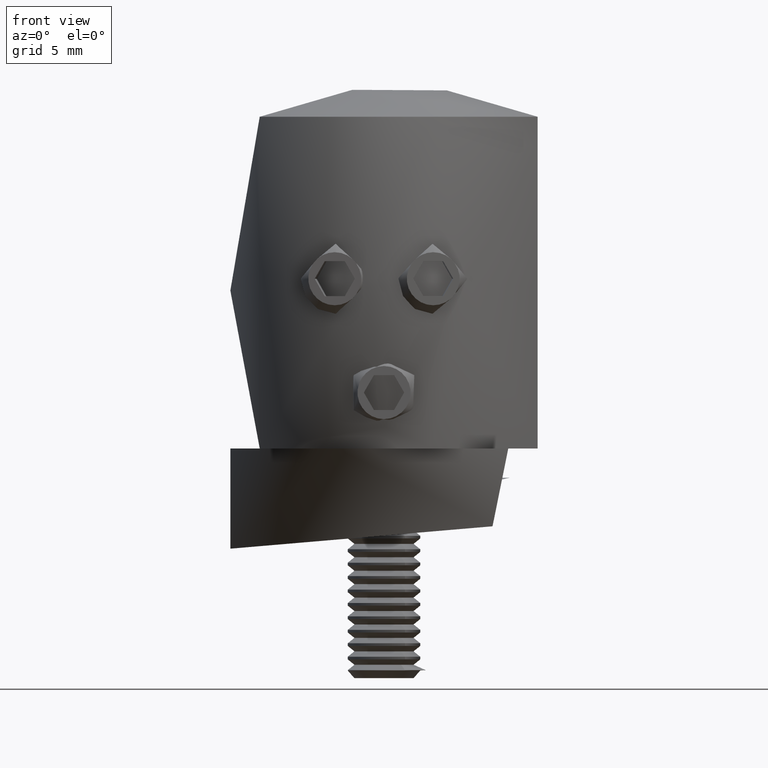
[diagram: clean part render]
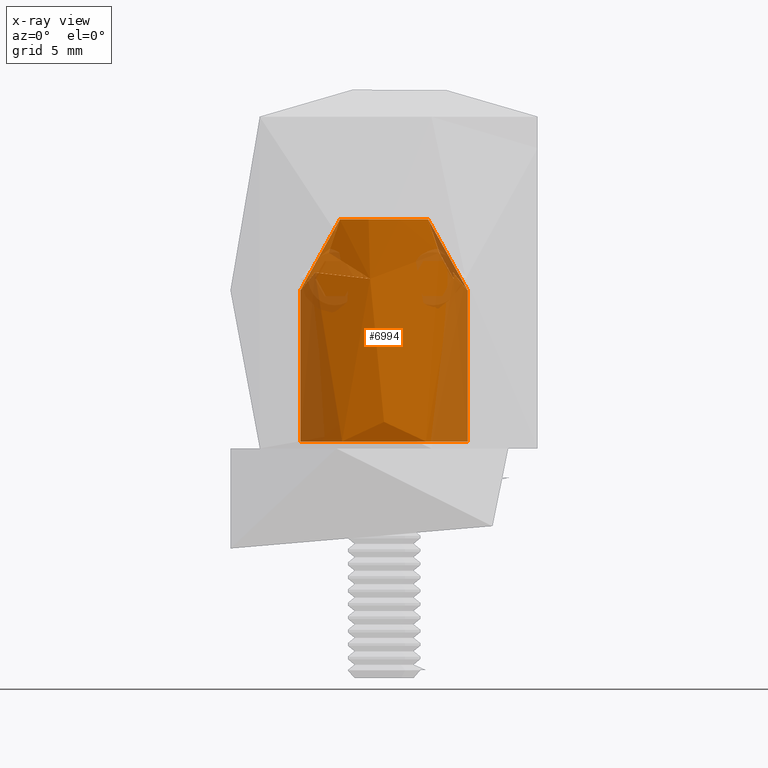
[diagram: x-ray — body ghosted, one internal face saturated and labeled with its STEP entity id]
A machine part, front view, then the same camera in x-ray: the body is ghosted and one INTERNAL B-rep face — a face not visible from any outside direction — is saturated and labeled: STEP entity #6994.
In plain terms, the highlighted cylindrical surface (bore or boss wall) has radius 6 mm, axis along (-0, -0, -1).
Its self-contained STEP definition (entity closure, byte-faithful):
#84 = CARTESIAN_POINT ( 'NONE',  ( 3.963627796410007500, -4.504403921888662200, 14.00827566210609000 ) ) ;
#374 = CARTESIAN_POINT ( 'NONE',  ( 5.178843461544558700, 3.058924640300817900, 12.29268326468126200 ) ) ;
#412 = EDGE_CURVE ( 'NONE', #7080, #25619, #26904, .T. ) ;
#650 = CARTESIAN_POINT ( 'NONE',  ( 5.664909505706115000, -1.991374640260977300, 11.69842010109297100 ) ) ;
#698 = CARTESIAN_POINT ( 'NONE',  ( 4.283612603047722600, -4.206199582006052900, 10.50553046394272600 ) ) ;
#710 = CARTESIAN_POINT ( 'NONE',  ( -4.944587663942321900, -3.398683985543438500, 12.59750776905322300 ) ) ;
#760 = VERTEX_POINT ( 'NONE', #84 ) ;
#806 = B_SPLINE_CURVE_WITH_KNOTS ( 'NONE', 3,
 ( #710, #25225, #18304, #27446, #9786, #27353, #14197, #14302, #7672, #9595, #1111, #5545, #24838, #18996, #16977, #27738, #14595, #12388, #9983, #12289, #21111, #8063, #6038, #1508, #27648, #10281, #21397, #25520 ),
 .UNSPECIFIED., .F., .F.,
 ( 4, 2, 2, 2, 2, 2, 2, 2, 2, 2, 2, 2, 2, 4 ),
 ( 0.004684118566430970800, 0.006241044027797427800, 0.007019506758480656800, 0.007797969489163884800, 0.009354894950530342700, 0.01013335768121357100, 0.01091182041189679900, 0.01169028314258002500, 0.01246874587326325500, 0.01402567133462970900, 0.01480413406531293600, 0.01558259679599616400, 0.01636105952667939200, 0.01713952225736261800 ),
 .UNSPECIFIED. ) ;
#1111 = CARTESIAN_POINT ( 'NONE',  ( -5.866878357186113400, 1.281289650151964400, 11.45713210838502000 ) ) ;
#1239 = CIRCLE ( 'NONE', #5977, 6.000000000000000900 ) ;
#1274 = CARTESIAN_POINT ( 'NONE',  ( -3.582402067820732200, -4.819579506651850300, 10.11712361285116300 ) ) ;
#1369 = CARTESIAN_POINT ( 'NONE',  ( -1.362082952691092000, -5.843717150840542600, 13.34669839885693700 ) ) ;
#1471 = CARTESIAN_POINT ( 'NONE',  ( -2.287385459283409100, -5.548168266091461300, 10.19763142698964300 ) ) ;
#1496 = CARTESIAN_POINT ( 'NONE',  ( -1.832704397464457200, -5.714346342055216100, 5.061775951773686400 ) ) ;
#1508 = CARTESIAN_POINT ( 'NONE',  ( -3.399871845494991000, 4.945276318470730500, 15.13008265535093600 ) ) ;
#1570 = CARTESIAN_POINT ( 'NONE',  ( -4.671822389001231800, -3.765960445681995500, 10.98122716688650700 ) ) ;
#1598 = CARTESIAN_POINT ( 'NONE',  ( 1.055318436482936700, -5.907600806349175400, 2.179273462287427700 ) ) ;
#1686 = CARTESIAN_POINT ( 'NONE',  ( -2.031781744484791200, -5.645590759985886100, 4.548445105721373100 ) ) ;
#1782 = CARTESIAN_POINT ( 'NONE',  ( 2.086195265504057000, -5.625710555255438700, 4.277106224398222500 ) ) ;
#1871 = CARTESIAN_POINT ( 'NONE',  ( 1.992054000542895300, -5.659936331073166300, 4.678887825467367800 ) ) ;
#1884 = CARTESIAN_POINT ( 'NONE',  ( 3.160696125855821500, 5.100000000000001400, 16.39999999999999900 ) ) ;
#2069 = CARTESIAN_POINT ( 'NONE',  ( 0.9956888940299061200, -5.916807100802974300, 11.91212198280521900 ) ) ;
#2637 = CARTESIAN_POINT ( 'NONE',  ( 1.692712975280191000, -5.757149353488415500, 13.72614047889225500 ) ) ;
#2824 = CARTESIAN_POINT ( 'NONE',  ( 2.636670307787595000, -5.391065980587816500, 14.21068298134421100 ) ) ;
#3311 = CARTESIAN_POINT ( 'NONE',  ( 3.582475698179066600, -4.819637230274396200, 10.11693280410713000 ) ) ;
#3383 = CARTESIAN_POINT ( 'NONE',  ( -3.273787596177557100, -5.029692095370272400, 10.06145353283641200 ) ) ;
#3486 = CARTESIAN_POINT ( 'NONE',  ( -1.051426410267749100, -5.907199050043304000, 11.65686942852143700 ) ) ;
#3587 = CARTESIAN_POINT ( 'NONE',  ( -1.599883992497362900, -5.783381617397855800, 13.63709420998438500 ) ) ;
#3680 = CARTESIAN_POINT ( 'NONE',  ( -4.284892769737043100, -4.204888590477193800, 10.50665291443979800 ) ) ;
#3707 = CARTESIAN_POINT ( 'NONE',  ( -1.991790499454957100, -5.660027428170497600, 4.679568982034624000 ) ) ;
#3800 = CARTESIAN_POINT ( 'NONE',  ( 1.581278183707604900, -5.788737489101017700, 5.388590976637336100 ) ) ;
#3892 = CARTESIAN_POINT ( 'NONE',  ( -1.833295944888411600, -5.714140928245533300, 2.939791683323970800 ) ) ;
#3904 = CARTESIAN_POINT ( 'NONE',  ( 3.313108273808068400, 5.002832400377725400, 15.37721622047414300 ) ) ;
#3992 = CARTESIAN_POINT ( 'NONE',  ( -1.991246174694209200, -5.660214997163486700, 3.319050225171499900 ) ) ;
#4080 = CARTESIAN_POINT ( 'NONE',  ( 0.2777402781516119000, -5.995120906657181300, 6.086177050655782800 ) ) ;
#4084 = CARTESIAN_POINT ( 'NONE',  ( 0.0000000000000000000, -6.000000000000000900, 1.900000000000006800 ) ) ;
#4125 = CARTESIAN_POINT ( 'NONE',  ( 3.160696125855821500, 5.100000000000001400, 16.39999999999999900 ) ) ;
#4157 = CARTESIAN_POINT ( 'NONE',  ( -3.596383116115096500, -4.809140083218909300, 14.17861305825851700 ) ) ;
#4253 = CARTESIAN_POINT ( 'NONE',  ( -3.186229028016214200, -5.090161533677232300, 14.25596224994003000 ) ) ;
#4300 = CARTESIAN_POINT ( 'NONE',  ( 3.596067074758821900, -4.809271572609593400, 14.17851190769137100 ) ) ;
#4580 = ORIENTED_EDGE ( 'NONE', *, *, #18705, .F. ) ;
#4601 = ORIENTED_EDGE ( 'NONE', *, *, #22645, .T. ) ;
#4716 = CARTESIAN_POINT ( 'NONE',  ( 5.917437792385388000, -1.025374287089488200, 11.39735028763261400 ) ) ;
#4860 = CARTESIAN_POINT ( 'NONE',  ( 1.357115522387696500, -5.846938441541011500, 13.35866094994271000 ) ) ;
#5000 = CARTESIAN_POINT ( 'NONE',  ( 3.945020083087439100, 4.523339642062945900, 14.03282817520512700 ) ) ;
#5119 = CARTESIAN_POINT ( 'NONE',  ( 3.160696125855821500, -5.100000000000001400, 16.39999999999999900 ) ) ;
#5215 = CARTESIAN_POINT ( 'NONE',  ( 3.160696125855821900, -5.100000000000002300, 16.17729008210736900 ) ) ;
#5396 = FACE_OUTER_BOUND ( 'NONE', #24860, .T. ) ;
#5437 = CARTESIAN_POINT ( 'NONE',  ( 2.502174247607535000, -5.454679040425515900, 10.12263065689578300 ) ) ;
#5444 = CARTESIAN_POINT ( 'NONE',  ( -3.560072459447669100, -4.833143233361817600, 14.72007646467286600 ) ) ;
#5545 = CARTESIAN_POINT ( 'NONE',  ( -5.740583058033427800, 1.762858751977864500, 11.60771712206802600 ) ) ;
#5613 = CARTESIAN_POINT ( 'NONE',  ( -4.982091296080214200, -3.343474391017399400, 12.35297356051982100 ) ) ;
#5703 = CARTESIAN_POINT ( 'NONE',  ( -3.160696125855821500, -5.100000000000001400, 16.39999999999999900 ) ) ;
#5709 = CARTESIAN_POINT ( 'NONE',  ( -4.968030209214217200, -3.364578513938583100, 12.47680731171085700 ) ) ;
#5808 = CARTESIAN_POINT ( 'NONE',  ( -1.688537285505763900, -5.758365342352514700, 13.72232640817623500 ) ) ;
#5830 = CARTESIAN_POINT ( 'NONE',  ( 0.1386258689238649400, -5.999981683544565800, 6.099947667266898000 ) ) ;
#5902 = CARTESIAN_POINT ( 'NONE',  ( -4.952469357456077900, -3.387306262229326000, 11.72646629277599600 ) ) ;
#5929 = CARTESIAN_POINT ( 'NONE',  ( -0.6799031944775879600, -5.962726470154970900, 5.991631115680869300 ) ) ;
#5977 = AXIS2_PLACEMENT_3D ( 'NONE', #23092, #27729, #14480 ) ;
#6002 = CARTESIAN_POINT ( 'NONE',  ( -2.506661409805778500, -5.452609643537304200, 10.12138250880624400 ) ) ;
#6029 = CARTESIAN_POINT ( 'NONE',  ( -0.1370357647622484900, -6.000018211104130500, 6.100052031729359400 ) ) ;
#6038 = CARTESIAN_POINT ( 'NONE',  ( -3.598102431109217600, 4.802972551146101700, 14.66797730926957200 ) ) ;
#6091 = DIRECTION ( 'NONE',  ( 0.0000000000000000000, 0.0000000000000000000, -1.000000000000000000 ) ) ;
#6124 = CARTESIAN_POINT ( 'NONE',  ( -5.421010862427522200E-017, -6.000000000000001800, 1.900000000000007200 ) ) ;
#6131 = CARTESIAN_POINT ( 'NONE',  ( 3.398906656994630000, 4.945916770634458000, 15.13283301013688500 ) ) ;
#6166 = CARTESIAN_POINT ( 'NONE',  ( -4.944587663942321900, -3.398683985543438500, 12.59750776905322300 ) ) ;
#6209 = CARTESIAN_POINT ( 'NONE',  ( 1.283385613909028100, -5.862276931221736700, 5.667804354879554500 ) ) ;
#6604 = CARTESIAN_POINT ( 'NONE',  ( 2.194638566625835900, -5.585347509414760700, 14.06142647140923800 ) ) ;
#6855 = CARTESIAN_POINT ( 'NONE',  ( 6.017146846273912600, -0.2525740522625695200, 11.27966869809984000 ) ) ;
#6878 = ORIENTED_EDGE ( 'NONE', *, *, #19557, .F. ) ;
#6946 = CARTESIAN_POINT ( 'NONE',  ( 5.868416528184992500, -1.274270267197173100, 11.45530783178270600 ) ) ;
#6994 = ADVANCED_FACE ( 'NONE', ( #16035, #5396, #21895 ), #19493, .F. ) ;
#7080 = VERTEX_POINT ( 'NONE', #4125 ) ;
#7087 = CARTESIAN_POINT ( 'NONE',  ( 0.9988944020458102600, -5.916266780273565100, 12.41494406465832200 ) ) ;
#7135 = CARTESIAN_POINT ( 'NONE',  ( 5.489157622313067400, -2.434321520078315700, 11.91173694614890400 ) ) ;
#7228 = CARTESIAN_POINT ( 'NONE',  ( 5.742565459749021000, -1.756422273439704600, 11.60534400090506100 ) ) ;
#7370 = CARTESIAN_POINT ( 'NONE',  ( 2.948197069023049000, -5.227236909516939500, 10.04914040493158500 ) ) ;
#7661 = CARTESIAN_POINT ( 'NONE',  ( 2.282078014693805100, -5.550362090377428900, 10.19980336431843400 ) ) ;
#7668 = CARTESIAN_POINT ( 'NONE',  ( -3.963627796410004800, -4.504403921888663100, 14.00827566210609200 ) ) ;
#7672 = CARTESIAN_POINT ( 'NONE',  ( -6.016742578279195900, 0.2608846127290774800, 11.28014068395215800 ) ) ;
#7757 = CARTESIAN_POINT ( 'NONE',  ( 4.126191260331181000, -4.362241004997599700, 10.38172132222632400 ) ) ;
#7828 = CARTESIAN_POINT ( 'NONE',  ( -1.225770891829618200, -5.873816657830052400, 11.18348596392051600 ) ) ;
#7921 = CARTESIAN_POINT ( 'NONE',  ( -0.9987055717154625900, -5.916298611956288600, 12.41624197979273500 ) ) ;
#8025 = CARTESIAN_POINT ( 'NONE',  ( -4.926841118183121500, -3.424840309259813400, 11.60604663986550700 ) ) ;
#8054 = CARTESIAN_POINT ( 'NONE',  ( -2.099994040831215400, -5.620500425096848200, 3.861512015611140700 ) ) ;
#8063 = CARTESIAN_POINT ( 'NONE',  ( -3.709996769329387200, 4.717995329412828700, 14.44961903877903900 ) ) ;
#8125 = CARTESIAN_POINT ( 'NONE',  ( -1.587331364435178100, -5.786828400762367200, 10.67581763058438700 ) ) ;
#8152 = CARTESIAN_POINT ( 'NONE',  ( -2.085970634324527700, -5.625794041661615500, 4.278667550940393300 ) ) ;
#8215 = CARTESIAN_POINT ( 'NONE',  ( -2.951085638064272500, -5.225611336216553900, 10.04899627896164700 ) ) ;
#8241 = CARTESIAN_POINT ( 'NONE',  ( -1.679082131009260700, -5.763747723864387500, 5.290733017625370800 ) ) ;
#8336 = CARTESIAN_POINT ( 'NONE',  ( 1.885684773470323500, -5.696257661656740200, 4.934537723020821600 ) ) ;
#8434 = CARTESIAN_POINT ( 'NONE',  ( 2.032077313730785000, -5.645484189008472600, 4.547412400692979700 ) ) ;
#8828 = CARTESIAN_POINT ( 'NONE',  ( 1.601873167470933900, -5.782829348632518900, 13.63908966217367300 ) ) ;
#9055 = EDGE_CURVE ( 'NONE', #20021, #20021, #18055, .T. ) ;
#9066 = CARTESIAN_POINT ( 'NONE',  ( 5.660036902840267300, 2.005150556095053500, 11.70428729152013500 ) ) ;
#9252 = CARTESIAN_POINT ( 'NONE',  ( 5.738045751502447400, 1.771025155336173100, 11.61075533529748700 ) ) ;
#9301 = CARTESIAN_POINT ( 'NONE',  ( 1.350100309867707600, -5.846490018497360300, 10.97099308778006800 ) ) ;
#9489 = CARTESIAN_POINT ( 'NONE',  ( 4.678452983618586600, -3.759800728649370900, 10.97535612577070400 ) ) ;
#9578 = B_SPLINE_CURVE_WITH_KNOTS ( 'NONE', 3,
 ( #27987, #5709, #5613, #19158, #23167, #5902, #8025, #12257, #16559, #27891, #1570, #20975, #14456, #3680, #14747, #25383, #1274, #3383, #21075, #8215, #16943, #10440, #6002, #1471, #14654, #21361, #18957, #25586, #8125, #14557, #18760, #7828, #23563, #16846, #3486, #16661, #18858, #7921, #23266, #10151, #25483, #1369, #16755, #3587, #5808, #12455, #23467, #10339, #27797, #19063, #25687, #12556, #4253, #4157, #15113, #17216 ),
 .UNSPECIFIED., .F., .F.,
 ( 4, 2, 2, 2, 2, 2, 2, 2, 2, 2, 2, 2, 2, 2, 2, 2, 2, 2, 2, 2, 2, 2, 2, 2, 2, 2, 2, 4 ),
 ( 0.006624583577701905300, 0.007001097644595522300, 0.007377611711489140200, 0.007754125778382758200, 0.008130639845276375200, 0.008507153912169992300, 0.008883667979063609300, 0.009636696112850846900, 0.01038972424663808100, 0.01076623831353169800, 0.01114275238042531500, 0.01151926644731893200, 0.01189578051421254900, 0.01227229458110616600, 0.01264880864799978300, 0.01302532271489340000, 0.01340183678178701700, 0.01377835084868063400, 0.01415486491557425300, 0.01490789304936148200, 0.01528440711625509400, 0.01566092118314870600, 0.01603743525004231900, 0.01641394931693593300, 0.01679046338382954300, 0.01716697745072315300, 0.01792000558451038000, 0.01867303371829760400 ),
 .UNSPECIFIED. ) ;
#9595 = CARTESIAN_POINT ( 'NONE',  ( -5.916151152053983800, 1.032699643971806600, 11.39887147789014500 ) ) ;
#9680 = CARTESIAN_POINT ( 'NONE',  ( 4.944587663943694100, -3.398683985541441000, 12.59750776905143800 ) ) ;
#9749 = CARTESIAN_POINT ( 'NONE',  ( 3.561587061274875200, -4.832075322084437000, 14.71638720343546900 ) ) ;
#9775 = CARTESIAN_POINT ( 'NONE',  ( 4.990376123501239800, -3.331096470449125000, 12.10256298574607200 ) ) ;
#9786 = CARTESIAN_POINT ( 'NONE',  ( -5.740629028012515200, -1.762626703503235000, 11.60766279271157600 ) ) ;
#9876 = CARTESIAN_POINT ( 'NONE',  ( 3.271097451955332400, -5.031468995202494000, 10.06107162082741100 ) ) ;
#9983 = CARTESIAN_POINT ( 'NONE',  ( -4.450954483077227400, 4.039104649793406700, 13.25281883874061800 ) ) ;
#10067 = ORIENTED_EDGE ( 'NONE', *, *, #11107, .F. ) ;
#10151 = CARTESIAN_POINT ( 'NONE',  ( -1.179461676836238000, -5.883106793458861000, 13.01984852006182400 ) ) ;
#10181 = CARTESIAN_POINT ( 'NONE',  ( -3.963627796410004800, -4.504403921888663100, 14.00827566210609200 ) ) ;
#10273 = CARTESIAN_POINT ( 'NONE',  ( 1.389511688007988100, -5.837728522015407200, 2.419587935187493200 ) ) ;
#10281 = CARTESIAN_POINT ( 'NONE',  ( -3.194982177376394000, 5.079088162471990100, 15.87374580042686900 ) ) ;
#10312 = DIRECTION ( 'NONE',  ( -0.0000000000000000000, -0.0000000000000000000, -1.000000000000000000 ) ) ;
#10339 = CARTESIAN_POINT ( 'NONE',  ( -2.191502181405272400, -5.586578646994479600, 14.05994591523701100 ) ) ;
#10366 = CARTESIAN_POINT ( 'NONE',  ( -0.5468734143387938800, -5.976552651432204900, 1.967803393346849300 ) ) ;
#10440 = CARTESIAN_POINT ( 'NONE',  ( -2.617088466805948400, -5.400587595789188500, 10.09358333075070700 ) ) ;
#10469 = CARTESIAN_POINT ( 'NONE',  ( 0.6812341139050355200, -5.962577447961941800, 2.008811109739972300 ) ) ;
#10566 = CARTESIAN_POINT ( 'NONE',  ( 2.100097390676808600, -5.620461810260685800, 4.136718875267625600 ) ) ;
#10575 = CARTESIAN_POINT ( 'NONE',  ( 3.707428650145803600, 4.720037900006674100, 14.45440338506117200 ) ) ;
#10650 = CARTESIAN_POINT ( 'NONE',  ( -0.6805891605157771100, -5.962656029525707200, 2.008574322222096000 ) ) ;
#11014 = VERTEX_POINT ( 'NONE', #16401 ) ;
#11028 = CARTESIAN_POINT ( 'NONE',  ( 3.963627796410007500, -4.504403921888662200, 14.00827566210609000 ) ) ;
#11107 = EDGE_CURVE ( 'NONE', #21536, #17068, #806, .T. ) ;
#11393 = AXIS2_PLACEMENT_3D ( 'NONE', #25360, #10312, #21240 ) ;
#11494 = CARTESIAN_POINT ( 'NONE',  ( 1.583088235637679400, -5.787981832293843000, 10.68028017261607200 ) ) ;
#11537 = CARTESIAN_POINT ( 'NONE',  ( 4.446699933118107000, 4.043518535216068500, 13.25902625283096500 ) ) ;
#11544 = DIRECTION ( 'NONE',  ( 0.0000000000000000000, 0.0000000000000000000, -1.000000000000000000 ) ) ;
#11676 = CARTESIAN_POINT ( 'NONE',  ( 4.860658666116163900, -3.518136408896220600, 11.38100650949569100 ) ) ;
#11736 = CARTESIAN_POINT ( 'NONE',  ( 0.0000000000000000000, 0.0000000000000000000, 16.39999999999999900 ) ) ;
#11878 = CARTESIAN_POINT ( 'NONE',  ( 3.165015859595747400, -5.098876962088781700, 10.05100034615316900 ) ) ;
#12257 = CARTESIAN_POINT ( 'NONE',  ( -4.860418934440280800, -3.518468747834088800, 11.38032000564165900 ) ) ;
#12289 = CARTESIAN_POINT ( 'NONE',  ( -4.071500004717051100, 4.410694759013715300, 13.82938710591207300 ) ) ;
#12388 = CARTESIAN_POINT ( 'NONE',  ( -4.704838616935878900, 3.746901427535465100, 12.90938224927646000 ) ) ;
#12455 = CARTESIAN_POINT ( 'NONE',  ( -1.878821813055621600, -5.699119070113919600, 13.87585293265111700 ) ) ;
#12484 = CARTESIAN_POINT ( 'NONE',  ( 1.056572057962529300, -5.907370391185574800, 5.819974034561118600 ) ) ;
#12505 = ORIENTED_EDGE ( 'NONE', *, *, #26699, .T. ) ;
#12556 = CARTESIAN_POINT ( 'NONE',  ( -2.965608677479696400, -5.221812271789287000, 14.26146414394764300 ) ) ;
#12675 = CARTESIAN_POINT ( 'NONE',  ( -1.282893921177701100, -5.862382304820062700, 5.668170089699676100 ) ) ;
#12763 = CARTESIAN_POINT ( 'NONE',  ( -0.5485102145950172500, -5.976435261253112900, 6.031854882297268200 ) ) ;
#12861 = CARTESIAN_POINT ( 'NONE',  ( -0.9335114993840605300, -5.928316084038139700, 5.886112174640410400 ) ) ;
#13020 = CARTESIAN_POINT ( 'NONE',  ( 0.0000000000000000000, 0.0000000000000000000, 16.39999999999999900 ) ) ;
#13630 = CARTESIAN_POINT ( 'NONE',  ( 1.040008053459179300, -5.909827525073979800, 11.65738222579900300 ) ) ;
#13676 = CARTESIAN_POINT ( 'NONE',  ( 6.016267994859013900, 0.2711918128703333400, 11.28069397961702500 ) ) ;
#13721 = CARTESIAN_POINT ( 'NONE',  ( 1.862569519180321300, -5.704444180930489800, 10.43583483340305700 ) ) ;
#14085 = CARTESIAN_POINT ( 'NONE',  ( 4.981936798883826800, -3.343705023080991300, 12.35529918368495600 ) ) ;
#14197 = CARTESIAN_POINT ( 'NONE',  ( -5.915921812180057400, -1.033984401102238300, 11.39914265507555100 ) ) ;
#14302 = CARTESIAN_POINT ( 'NONE',  ( -6.016651695743476600, -0.2625278848218902700, 11.28024699680533200 ) ) ;
#14392 = CARTESIAN_POINT ( 'NONE',  ( -3.160696125855822800, -5.100000000000000500, 16.17691197369491400 ) ) ;
#14456 = CARTESIAN_POINT ( 'NONE',  ( -4.491142068786903300, -3.979948673612515400, 10.72855360962682200 ) ) ;
#14480 = DIRECTION ( 'NONE',  ( 1.000000000000000000, 0.0000000000000000000, 0.0000000000000000000 ) ) ;
#14557 = CARTESIAN_POINT ( 'NONE',  ( -1.425314517131061300, -5.828849142639138700, 10.86528330058916200 ) ) ;
#14595 = CARTESIAN_POINT ( 'NONE',  ( -5.060460028990339900, 3.230392928849481000, 12.44677572447847800 ) ) ;
#14654 = CARTESIAN_POINT ( 'NONE',  ( -2.177294580764106400, -5.592130700219449600, 10.24684051174309100 ) ) ;
#14678 = CARTESIAN_POINT ( 'NONE',  ( -1.677594955765174600, -5.764126152619212500, 2.707790437232916700 ) ) ;
#14681 = CARTESIAN_POINT ( 'NONE',  ( -3.334541422147015300, -4.988905777990098000, 15.32126310528410200 ) ) ;
#14747 = CARTESIAN_POINT ( 'NONE',  ( -4.125758316876453300, -4.362545932366599800, 10.38163221995604400 ) ) ;
#14772 = CARTESIAN_POINT ( 'NONE',  ( 0.2773110508732141700, -5.995114773543329000, 1.913844450117064800 ) ) ;
#14871 = CARTESIAN_POINT ( 'NONE',  ( 2.031893931028322200, -5.645550960297868800, 3.451744546214746900 ) ) ;
#14928 = VERTEX_POINT ( 'NONE', #5703 ) ;
#15051 = CARTESIAN_POINT ( 'NONE',  ( 0.1399303184415932900, -6.000000000000000900, 1.900000000000006800 ) ) ;
#15113 = CARTESIAN_POINT ( 'NONE',  ( -3.789824974576860000, -4.657340849317566100, 14.10643098562282600 ) ) ;
#15246 = CARTESIAN_POINT ( 'NONE',  ( 6.000000000000000900, 0.0000000000000000000, 0.5000000000000073300 ) ) ;
#15258 = CARTESIAN_POINT ( 'NONE',  ( 1.046469327009110800, -5.908733390642509200, 12.66915061371736000 ) ) ;
#15363 = AXIS2_PLACEMENT_3D ( 'NONE', #11736, #11544, #16156 ) ;
#15821 = CARTESIAN_POINT ( 'NONE',  ( 3.291030815321886600, -5.018397556882134400, 14.23627767914201700 ) ) ;
#15959 = CARTESIAN_POINT ( 'NONE',  ( 5.063138256734535300, -3.226210227710315100, 12.44334997909046700 ) ) ;
#16035 = FACE_BOUND ( 'NONE', #18061, .T. ) ;
#16101 = CARTESIAN_POINT ( 'NONE',  ( 4.984299058426077300, -3.340296313382884900, 11.97417288685333100 ) ) ;
#16156 = DIRECTION ( 'NONE',  ( -1.000000000000000000, 0.0000000000000000000, 0.0000000000000000000 ) ) ;
#16401 = CARTESIAN_POINT ( 'NONE',  ( 3.160696125855821500, -5.100000000000001400, 16.39999999999999900 ) ) ;
#16486 = CARTESIAN_POINT ( 'NONE',  ( 3.774435877092753500, -4.669928769502911700, 10.18683171154375300 ) ) ;
#16559 = CARTESIAN_POINT ( 'NONE',  ( -4.819909396252788800, -3.574145276152942900, 11.27482809949493800 ) ) ;
#16661 = CARTESIAN_POINT ( 'NONE',  ( -1.007451421251168300, -5.914857542397793800, 11.90653046310271500 ) ) ;
#16755 = CARTESIAN_POINT ( 'NONE',  ( -1.436481205642208000, -5.826118216080193900, 13.44930239523347000 ) ) ;
#16846 = CARTESIAN_POINT ( 'NONE',  ( -1.084248152729514700, -5.901386170973695200, 11.53543332901641700 ) ) ;
#16874 = CARTESIAN_POINT ( 'NONE',  ( 2.086293483836122700, -5.625674900985020000, 3.723311567177205000 ) ) ;
#16943 = CARTESIAN_POINT ( 'NONE',  ( -2.838850796171040500, -5.287383528737048100, 10.05732129405920500 ) ) ;
#16970 = CARTESIAN_POINT ( 'NONE',  ( 0.5472454995192380700, -5.976522812652007100, 1.967890563847576500 ) ) ;
#16977 = CARTESIAN_POINT ( 'NONE',  ( -5.388552786171692900, 2.648371366797876100, 12.03504612515752500 ) ) ;
#17065 = CARTESIAN_POINT ( 'NONE',  ( -2.086440083120673500, -5.625620362231071400, 3.724349182297993300 ) ) ;
#17068 = VERTEX_POINT ( 'NONE', #28542 ) ;
#17150 = CARTESIAN_POINT ( 'NONE',  ( 1.669065092636238500, -5.763722404570113900, 5.281706429908801700 ) ) ;
#17216 = CARTESIAN_POINT ( 'NONE',  ( -3.963627796410004800, -4.504403921888663100, 14.00827566210609200 ) ) ;
#17311 = B_SPLINE_CURVE_WITH_KNOTS ( 'NONE', 3,
 ( #25090, #27412, #9749, #23070, #18270, #27114, #5215, #5119 ),
 .UNSPECIFIED., .F., .F.,
 ( 4, 2, 2, 4 ),
 ( 0.01451228433627344900, 0.01582590329681803400, 0.01648271277709032600, 0.01713952225736261800 ),
 .UNSPECIFIED. ) ;
#17573 = EDGE_LOOP ( 'NONE', ( #10067, #12505, #4580, #24641, #25326, #4601, #21364, #6878 ) ) ;
#17968 = ORIENTED_EDGE ( 'NONE', *, *, #9055, .T. ) ;
#18011 = CARTESIAN_POINT ( 'NONE',  ( 2.525781370937647500, -5.443799967251033300, 14.18396867793105500 ) ) ;
#18055 = B_SPLINE_CURVE_WITH_KNOTS ( 'NONE', 3,
 ( #6124, #15051, #14772, #16970, #10469, #28011, #1598, #27920, #10273, #23587, #28106, #21566, #14871, #16874, #19091, #10566, #1782, #8434, #1871, #8336, #23680, #17150, #3800, #25805, #6209, #12484, #21196, #19184, #25906, #4080, #5830, #6029, #27821, #12763, #5929, #12861, #21391, #12675, #28189, #8241, #1496, #3707, #1686, #8152, #23494, #8054, #17065, #23390, #3992, #3892, #14678, #25612, #19370, #23766, #21293, #10650, #10366, #25717, #25992, #19273 ),
 .UNSPECIFIED., .T., .F.,
 ( 4, 2, 2, 2, 2, 2, 2, 2, 2, 2, 2, 2, 2, 2, 2, 2, 2, 2, 2, 2, 2, 2, 2, 2, 2, 2, 2, 2, 2, 4 ),
 ( 0.0000000000000000000, 0.0004135997285890928200, 0.0008271994571781854200, 0.001240799185767278200, 0.001654398914356370600, 0.002481598371534556400, 0.002895198100123648800, 0.003308797828712741300, 0.003722397557301833300, 0.004135997285890926100, 0.004549597014480017700, 0.004963196743069110200, 0.005376796471658201700, 0.005790396200247294200, 0.006203995928836386600, 0.006617595657425478200, 0.007031195386014570600, 0.007444795114603662200, 0.007858394843192756400, 0.008271994571781848800, 0.009099194028960033700, 0.009512793757549127900, 0.009926393486138223800, 0.01033999321472731600, 0.01075359294331641200, 0.01158079240049460000, 0.01199439212908369600, 0.01240799185767279400, 0.01282159158626188800, 0.01323519131485098400 ),
 .UNSPECIFIED. ) ;
#18061 = EDGE_LOOP ( 'NONE', ( #17968 ) ) ;
#18270 = CARTESIAN_POINT ( 'NONE',  ( 3.272111028506235800, -5.029508855700319400, 15.52798237189490900 ) ) ;
#18304 = CARTESIAN_POINT ( 'NONE',  ( -5.398968870020876700, -2.660425002353118600, 12.02123983592167500 ) ) ;
#18494 = CARTESIAN_POINT ( 'NONE',  ( 4.558887936057995000, -3.906148056989400700, 10.80118767141158100 ) ) ;
#18688 = CARTESIAN_POINT ( 'NONE',  ( 2.172022174953488700, -5.594172179424058200, 10.24942340402316400 ) ) ;
#18696 = CARTESIAN_POINT ( 'NONE',  ( -3.271010178705379800, -5.030221484441294200, 15.53212945655468900 ) ) ;
#18705 = EDGE_CURVE ( 'NONE', #14928, #28451, #26513, .T. ) ;
#18760 = CARTESIAN_POINT ( 'NONE',  ( -1.352905182661310500, -5.845843307495226100, 10.96681732394318600 ) ) ;
#18805 = CIRCLE ( 'NONE', #15363, 6.000000000000000900 ) ;
#18858 = CARTESIAN_POINT ( 'NONE',  ( -0.9965698675233154400, -5.916658602652972800, 12.03470312213275600 ) ) ;
#18957 = CARTESIAN_POINT ( 'NONE',  ( -1.867012346143822600, -5.702990515895826300, 10.43263287930129500 ) ) ;
#18996 = CARTESIAN_POINT ( 'NONE',  ( -5.486735247265764700, 2.439748965561637600, 11.91469818101156300 ) ) ;
#19063 = CARTESIAN_POINT ( 'NONE',  ( -2.520095485918937500, -5.446433360173980300, 14.18241255914239400 ) ) ;
#19091 = CARTESIAN_POINT ( 'NONE',  ( 2.099901555218821200, -5.620534980703876500, 3.860305477660864500 ) ) ;
#19158 = CARTESIAN_POINT ( 'NONE',  ( -4.990317799970840800, -3.331183414518268400, 12.10198164588602200 ) ) ;
#19184 = CARTESIAN_POINT ( 'NONE',  ( 0.6810570200218701900, -5.962585327761368100, 5.991205495255797200 ) ) ;
#19273 = CARTESIAN_POINT ( 'NONE',  ( -5.421010862427522200E-017, -6.000000000000001800, 1.900000000000007200 ) ) ;
#19305 = VERTEX_POINT ( 'NONE', #15246 ) ;
#19370 = CARTESIAN_POINT ( 'NONE',  ( -1.281623710314719200, -5.862660541099056200, 2.330856865501477400 ) ) ;
#19493 = CYLINDRICAL_SURFACE ( 'NONE', #11393, 6.000000000000000900 ) ;
#19557 = EDGE_CURVE ( 'NONE', #17068, #7080, #27059, .T. ) ;
#19764 = CARTESIAN_POINT ( 'NONE',  ( 1.984652233648514200, -5.663364790521720600, 13.94652383108593700 ) ) ;
#20021 = VERTEX_POINT ( 'NONE', #4084 ) ;
#20229 = CARTESIAN_POINT ( 'NONE',  ( 1.169109844604505800, -5.885159445851431100, 11.30377530979094300 ) ) ;
#20371 = CARTESIAN_POINT ( 'NONE',  ( 5.914425086329727900, 1.042512491304960400, 11.40091233444566000 ) ) ;
#20511 = CARTESIAN_POINT ( 'NONE',  ( 1.962589016888208500, -5.671039327347463300, 10.36743759366884500 ) ) ;
#20803 = CARTESIAN_POINT ( 'NONE',  ( 4.819364607333074700, -3.574874926673077300, 11.27355772583063700 ) ) ;
#20810 = CARTESIAN_POINT ( 'NONE',  ( -3.755997526563764000, -4.687107143715539200, 14.35236594705229200 ) ) ;
#20906 = CARTESIAN_POINT ( 'NONE',  ( 2.613199006766267800, -5.402490001501360200, 10.09440669771622700 ) ) ;
#20975 = CARTESIAN_POINT ( 'NONE',  ( -4.554741834283534600, -3.906751762761741600, 10.80833133758690500 ) ) ;
#21075 = CARTESIAN_POINT ( 'NONE',  ( -3.168161060705136000, -5.096928072262337600, 10.05120099255709900 ) ) ;
#21077 = EDGE_CURVE ( 'NONE', #11014, #14928, #18805, .T. ) ;
#21111 = CARTESIAN_POINT ( 'NONE',  ( -3.946358823923650200, 4.522146391884684900, 14.03068410028995800 ) ) ;
#21196 = CARTESIAN_POINT ( 'NONE',  ( 0.9337857770029868200, -5.928263369488840700, 5.885943294885849200 ) ) ;
#21240 = DIRECTION ( 'NONE',  ( -1.000000000000000000, 0.0000000000000000000, 0.0000000000000000000 ) ) ;
#21293 = CARTESIAN_POINT ( 'NONE',  ( -0.9349122421464504100, -5.928103206872799900, 2.114551264284959300 ) ) ;
#21361 = CARTESIAN_POINT ( 'NONE',  ( -1.967132784024834500, -5.669473173918043500, 10.36450686264501700 ) ) ;
#21364 = ORIENTED_EDGE ( 'NONE', *, *, #412, .F. ) ;
#21391 = CARTESIAN_POINT ( 'NONE',  ( -1.056301083882023900, -5.907416619898390800, 5.820119853568162000 ) ) ;
#21397 = CARTESIAN_POINT ( 'NONE',  ( -3.160696125855821500, 5.100000000000001400, 16.13604009071083900 ) ) ;
#21450 = DIRECTION ( 'NONE',  ( -1.000000000000000000, 0.0000000000000000000, 0.0000000000000000000 ) ) ;
#21513 = CARTESIAN_POINT ( 'NONE',  ( 4.944587663943694100, -3.398683985541441000, 12.59750776905143800 ) ) ;
#21536 = VERTEX_POINT ( 'NONE', #6166 ) ;
#21541 = B_SPLINE_CURVE_WITH_KNOTS ( 'NONE', 3,
 ( #11028, #22521, #4300, #15821, #24067, #22610, #26287, #2824, #18011, #23970, #6604, #19764, #21972, #2637, #8828, #4860, #26380, #15258, #7087, #2069, #13630, #20229, #22428, #9301, #24642, #11494, #26856, #13721, #20511, #18688, #7661, #5437, #20906, #24827, #7370, #11878, #9876, #3311, #16486, #7757, #698, #18494, #9489, #20803, #11676, #27235, #27041, #16101, #9775, #14085, #22703, #9680 ),
 .UNSPECIFIED., .F., .F.,
 ( 4, 2, 2, 2, 2, 2, 2, 2, 2, 2, 2, 2, 2, 2, 2, 2, 2, 2, 2, 2, 2, 2, 2, 2, 2, 4 ),
 ( 0.002542469487669408700, 0.003294346842550607900, 0.003670285519991207800, 0.004046224197431807200, 0.004422162874872406600, 0.004798101552313006900, 0.005174040229753606300, 0.005549978907194205700, 0.006301856262075401100, 0.007053733616956596500, 0.007805610971837790900, 0.008181549649278387800, 0.008557488326718987200, 0.008933427004159583100, 0.009309365681600179100, 0.009685304359040778500, 0.01006124303648137400, 0.01043718171392197000, 0.01081312039136256800, 0.01156499774624376300, 0.01231687510112495900, 0.01306875245600615600, 0.01344469113344675200, 0.01382062981088734800, 0.01419656848832794700, 0.01457250716576854300 ),
 .UNSPECIFIED. ) ;
#21566 = CARTESIAN_POINT ( 'NONE',  ( 1.990963533487665200, -5.660313271408463200, 3.318295880892016200 ) ) ;
#21895 = FACE_OUTER_BOUND ( 'NONE', #17573, .T. ) ;
#21972 = CARTESIAN_POINT ( 'NONE',  ( 1.884059716214281800, -5.697399835082012300, 13.87961152328352700 ) ) ;
#22168 = ORIENTED_EDGE ( 'NONE', *, *, #22728, .T. ) ;
#22384 = CARTESIAN_POINT ( 'NONE',  ( 4.070372462507569900, 4.411673562993662800, 13.83123065849752500 ) ) ;
#22428 = CARTESIAN_POINT ( 'NONE',  ( 1.223254205643387300, -5.874339582580316400, 11.18840531342811900 ) ) ;
#22474 = CARTESIAN_POINT ( 'NONE',  ( 5.391069275659746500, -2.643264532306452100, 12.03194195386018400 ) ) ;
#22521 = CARTESIAN_POINT ( 'NONE',  ( 3.789981090770480100, -4.657203475650547400, 14.10634281884090100 ) ) ;
#22610 = CARTESIAN_POINT ( 'NONE',  ( 2.970876869922271200, -5.214370065825359100, 14.25178134710114200 ) ) ;
#22645 = EDGE_CURVE ( 'NONE', #760, #25619, #21541, .T. ) ;
#22703 = CARTESIAN_POINT ( 'NONE',  ( 4.967799879938924700, -3.364913609316090500, 12.47799322597601800 ) ) ;
#22728 = EDGE_CURVE ( 'NONE', #19305, #19305, #1239, .T. ) ;
#23070 = CARTESIAN_POINT ( 'NONE',  ( 3.334506717268349800, -4.988940622099642400, 15.32118237828246200 ) ) ;
#23092 = CARTESIAN_POINT ( 'NONE',  ( 0.0000000000000000000, 0.0000000000000000000, 0.5000000000000073300 ) ) ;
#23167 = CARTESIAN_POINT ( 'NONE',  ( -4.984114431046339000, -3.340568782245782100, 11.97278215095982800 ) ) ;
#23242 = AXIS2_PLACEMENT_3D ( 'NONE', #13020, #6091, #21450 ) ;
#23266 = CARTESIAN_POINT ( 'NONE',  ( -1.045258688968481400, -5.908953869730624800, 12.66518940110973500 ) ) ;
#23390 = CARTESIAN_POINT ( 'NONE',  ( -2.032103204105485200, -5.645475466979344300, 3.452485469036112400 ) ) ;
#23467 = CARTESIAN_POINT ( 'NONE',  ( -1.981492720024371700, -5.664470795286104200, 13.94455215909972900 ) ) ;
#23494 = CARTESIAN_POINT ( 'NONE',  ( -2.100005955277873600, -5.620495973474043600, 4.138307198453890800 ) ) ;
#23563 = CARTESIAN_POINT ( 'NONE',  ( -1.171054114120396500, -5.884775701541956400, 11.29925503349717700 ) ) ;
#23587 = CARTESIAN_POINT ( 'NONE',  ( 1.677500159237451200, -5.764135783203782300, 2.707802910303008600 ) ) ;
#23680 = CARTESIAN_POINT ( 'NONE',  ( 1.820638573103270200, -5.717652440165352300, 5.055379003986187700 ) ) ;
#23689 = CARTESIAN_POINT ( 'NONE',  ( 3.595667494733613400, 4.804772047904220000, 14.67316171865451000 ) ) ;
#23766 = CARTESIAN_POINT ( 'NONE',  ( -1.054979748196500600, -5.907653145361193100, 2.179116733785587000 ) ) ;
#23970 = CARTESIAN_POINT ( 'NONE',  ( 2.305101806765074400, -5.540851493919180200, 14.10962634324192600 ) ) ;
#24067 = CARTESIAN_POINT ( 'NONE',  ( 3.186414114628063100, -5.085521571059725700, 14.24744558590934700 ) ) ;
#24401 = CARTESIAN_POINT ( 'NONE',  ( 5.178298487742162100, -3.039029465891860400, 12.29743027022854200 ) ) ;
#24594 = CARTESIAN_POINT ( 'NONE',  ( 4.944587663943694100, -3.398683985541441000, 12.59750776905143800 ) ) ;
#24641 = ORIENTED_EDGE ( 'NONE', *, *, #21077, .F. ) ;
#24642 = CARTESIAN_POINT ( 'NONE',  ( 1.422226248120963100, -5.829594715924406100, 10.86941749548998000 ) ) ;
#24827 = CARTESIAN_POINT ( 'NONE',  ( 2.836516780640052600, -5.288655766679636500, 10.05752072417171500 ) ) ;
#24838 = CARTESIAN_POINT ( 'NONE',  ( -5.662738158338953600, 1.997507256216993300, 11.70103498802762800 ) ) ;
#24860 = EDGE_LOOP ( 'NONE', ( #22168 ) ) ;
#25090 = CARTESIAN_POINT ( 'NONE',  ( 3.963627796410007500, -4.504403921888662200, 14.00827566210609000 ) ) ;
#25225 = CARTESIAN_POINT ( 'NONE',  ( -5.183350626132899200, -3.051318828183854600, 12.28703129053576500 ) ) ;
#25326 = ORIENTED_EDGE ( 'NONE', *, *, #26567, .F. ) ;
#25360 = CARTESIAN_POINT ( 'NONE',  ( 0.0000000000000000000, 0.0000000000000000000, 16.39999999999999900 ) ) ;
#25383 = CARTESIAN_POINT ( 'NONE',  ( -3.777026552386194300, -4.667735974094211900, 10.18811723214752800 ) ) ;
#25483 = CARTESIAN_POINT ( 'NONE',  ( -1.234038513125880600, -5.872090688771903500, 13.13245678426082600 ) ) ;
#25514 = CARTESIAN_POINT ( 'NONE',  ( -3.184454069006349200, -5.085458490059464200, 15.95904715830720700 ) ) ;
#25520 = CARTESIAN_POINT ( 'NONE',  ( -3.160696125855821500, 5.100000000000001400, 16.39999999999999900 ) ) ;
#25586 = CARTESIAN_POINT ( 'NONE',  ( -1.677510207144070000, -5.761579247912734100, 10.58774617582260900 ) ) ;
#25612 = CARTESIAN_POINT ( 'NONE',  ( -1.388843066986826800, -5.837892061353310100, 2.418972633787931100 ) ) ;
#25619 = VERTEX_POINT ( 'NONE', #21513 ) ;
#25687 = CARTESIAN_POINT ( 'NONE',  ( -2.633032487900887700, -5.392835939938883900, 14.20989365218605700 ) ) ;
#25717 = CARTESIAN_POINT ( 'NONE',  ( -0.2773106023340089500, -5.995110587510879400, 1.913857049664069200 ) ) ;
#25805 = CARTESIAN_POINT ( 'NONE',  ( 1.388251816607981800, -5.838037281970530400, 5.581575950864485800 ) ) ;
#25819 = CARTESIAN_POINT ( 'NONE',  ( 3.160696125855822800, 5.100000000000000500, 16.13582873970863200 ) ) ;
#25906 = CARTESIAN_POINT ( 'NONE',  ( 0.5499592264330737100, -5.976299791409975800, 6.031457407392960800 ) ) ;
#25992 = CARTESIAN_POINT ( 'NONE',  ( -0.1399303184415943700, -6.000000000000003600, 1.900000000000007500 ) ) ;
#26085 = CARTESIAN_POINT ( 'NONE',  ( 3.194065793578797100, 5.079661619294586000, 15.87898510635888400 ) ) ;
#26287 = CARTESIAN_POINT ( 'NONE',  ( 2.858896779926607400, -5.276583356751346300, 14.24468373618611300 ) ) ;
#26380 = CARTESIAN_POINT ( 'NONE',  ( 1.224610965180402700, -5.874398379240594700, 13.13839599592719200 ) ) ;
#26513 = B_SPLINE_CURVE_WITH_KNOTS ( 'NONE', 3,
 ( #27346, #14392, #25514, #18696, #14681, #5444, #20810, #7668 ),
 .UNSPECIFIED., .F., .F.,
 ( 4, 2, 2, 4 ),
 ( 0.0000000000000000000, 0.0006577940702152949100, 0.001315588140430589800, 0.002631176280861180100 ),
 .UNSPECIFIED. ) ;
#26567 = EDGE_CURVE ( 'NONE', #760, #11014, #17311, .T. ) ;
#26699 = EDGE_CURVE ( 'NONE', #21536, #28451, #9578, .T. ) ;
#26719 = CARTESIAN_POINT ( 'NONE',  ( 5.395117151080311800, 2.668201061128431000, 12.02597559790260100 ) ) ;
#26810 = CARTESIAN_POINT ( 'NONE',  ( 4.700639243121211000, 3.752523185837920700, 12.91494039376402500 ) ) ;
#26856 = CARTESIAN_POINT ( 'NONE',  ( 1.672898822559575600, -5.762920974350604900, 10.59197660184973300 ) ) ;
#26901 = CARTESIAN_POINT ( 'NONE',  ( 5.864796870698993900, 1.290680755496136800, 11.45960145872754900 ) ) ;
#26904 = B_SPLINE_CURVE_WITH_KNOTS ( 'NONE', 3,
 ( #1884, #25819, #26085, #3904, #6131, #23689, #10575, #5000, #22384, #11537, #26810, #374, #26719, #9066, #9252, #26901, #20371, #13676, #6855, #4716, #6946, #7228, #650, #7135, #22474, #24401, #15959, #24594 ),
 .UNSPECIFIED., .F., .F.,
 ( 4, 2, 2, 2, 2, 2, 2, 2, 2, 2, 2, 2, 2, 4 ),
 ( 0.0000000000000000000, 0.0007789314891482410800, 0.001557862978296482200, 0.002336794467444723200, 0.003115725956592964700, 0.004673588934889450800, 0.006231451913185936400, 0.007010383402334179200, 0.007789314891482421200, 0.009347177869778905100, 0.01012610935892715000, 0.01090504084807539200, 0.01168397233722363400, 0.01246290382637187600 ),
 .UNSPECIFIED. ) ;
#27041 = CARTESIAN_POINT ( 'NONE',  ( 4.952256681266693900, -3.387620156965033900, 11.72485727387251800 ) ) ;
#27059 = CIRCLE ( 'NONE', #23242, 6.000000000000000900 ) ;
#27114 = CARTESIAN_POINT ( 'NONE',  ( 3.185005229708834500, -5.085116675079092400, 15.95507025933692800 ) ) ;
#27235 = CARTESIAN_POINT ( 'NONE',  ( 4.926993983257231600, -3.424619212268481800, 11.60669508248685300 ) ) ;
#27346 = CARTESIAN_POINT ( 'NONE',  ( -3.160696125855821500, -5.100000000000001400, 16.39999999999999900 ) ) ;
#27353 = CARTESIAN_POINT ( 'NONE',  ( -5.866655983584693400, -1.282194253392411300, 11.45739676882402800 ) ) ;
#27412 = CARTESIAN_POINT ( 'NONE',  ( 3.756960944964939500, -4.686259388491830400, 14.35076934501334600 ) ) ;
#27446 = CARTESIAN_POINT ( 'NONE',  ( -5.662997800098545500, -1.996781768053049500, 11.70072207539422300 ) ) ;
#27648 = CARTESIAN_POINT ( 'NONE',  ( -3.314354137772863600, 5.002010028512916800, 15.37336680387410800 ) ) ;
#27729 = DIRECTION ( 'NONE',  ( 0.0000000000000000000, 0.0000000000000000000, -1.000000000000000000 ) ) ;
#27738 = CARTESIAN_POINT ( 'NONE',  ( -5.175640167798859700, 3.043537560027903800, 12.30078393510703800 ) ) ;
#27797 = CARTESIAN_POINT ( 'NONE',  ( -2.299406793563328200, -5.543216214678969900, 14.10732946228295000 ) ) ;
#27821 = CARTESIAN_POINT ( 'NONE',  ( -0.2760850920997860400, -5.995199655506469000, 6.086402343784770100 ) ) ;
#27891 = CARTESIAN_POINT ( 'NONE',  ( -4.725708445355302000, -3.697799444619717300, 11.07524317226255100 ) ) ;
#27920 = CARTESIAN_POINT ( 'NONE',  ( 1.282773082496065000, -5.862417377531365900, 2.331696866173552900 ) ) ;
#27987 = CARTESIAN_POINT ( 'NONE',  ( -4.944587663942321900, -3.398683985543438500, 12.59750776905322300 ) ) ;
#28011 = CARTESIAN_POINT ( 'NONE',  ( 0.9351004188317552100, -5.928068568057646800, 2.114661748824999200 ) ) ;
#28106 = CARTESIAN_POINT ( 'NONE',  ( 1.833344241584947000, -5.714120875558134700, 2.940059396667278300 ) ) ;
#28189 = CARTESIAN_POINT ( 'NONE',  ( -1.388036528353558100, -5.838097357248577700, 5.581828602384570500 ) ) ;
#28451 = VERTEX_POINT ( 'NONE', #10181 ) ;
#28542 = CARTESIAN_POINT ( 'NONE',  ( -3.160696125855821500, 5.100000000000001400, 16.39999999999999900 ) ) ;